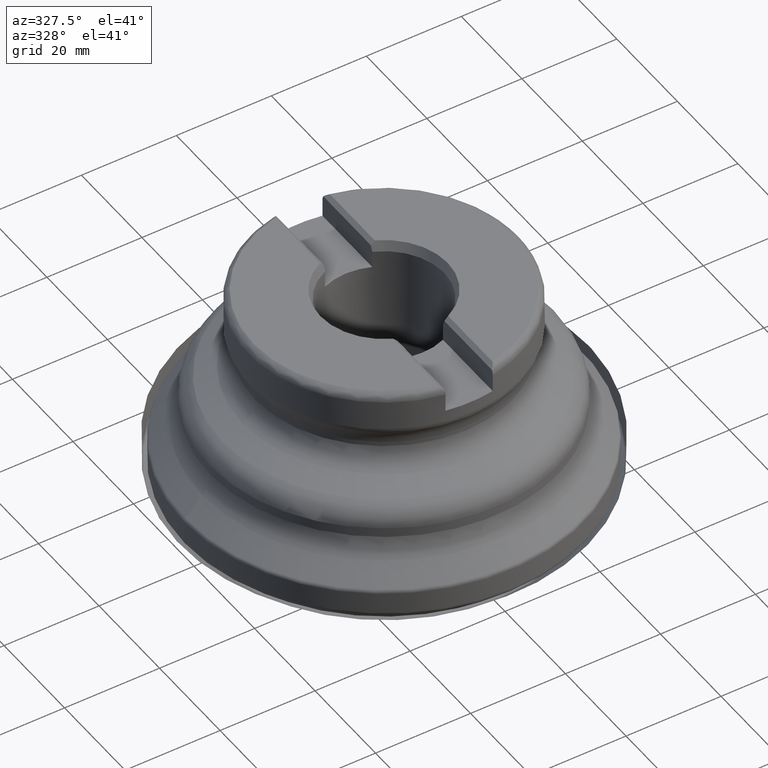
[diagram: clean part render]
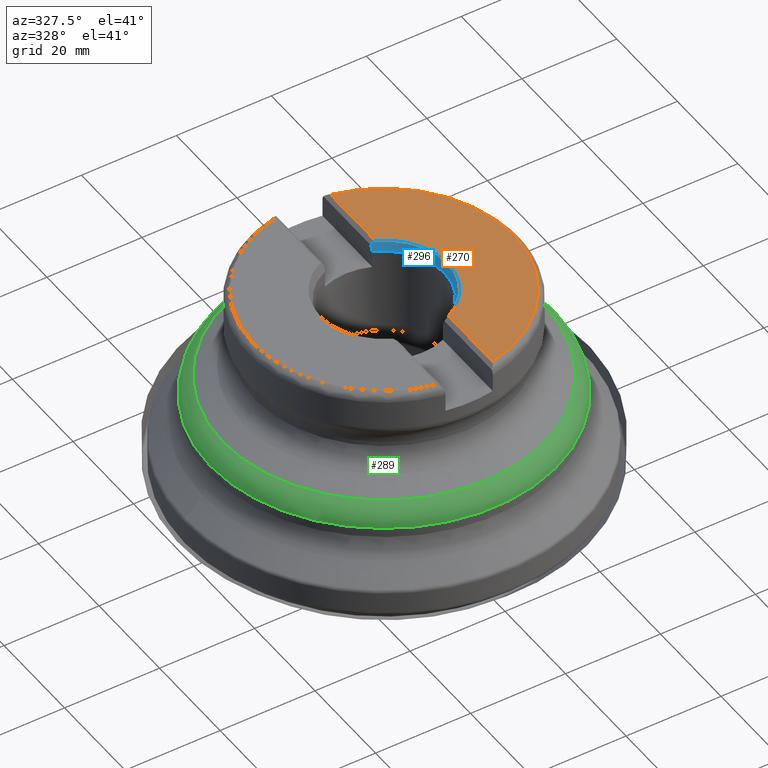
[diagram: same view with three faces highlighted in distinct colors, each labeled with its STEP entity id]
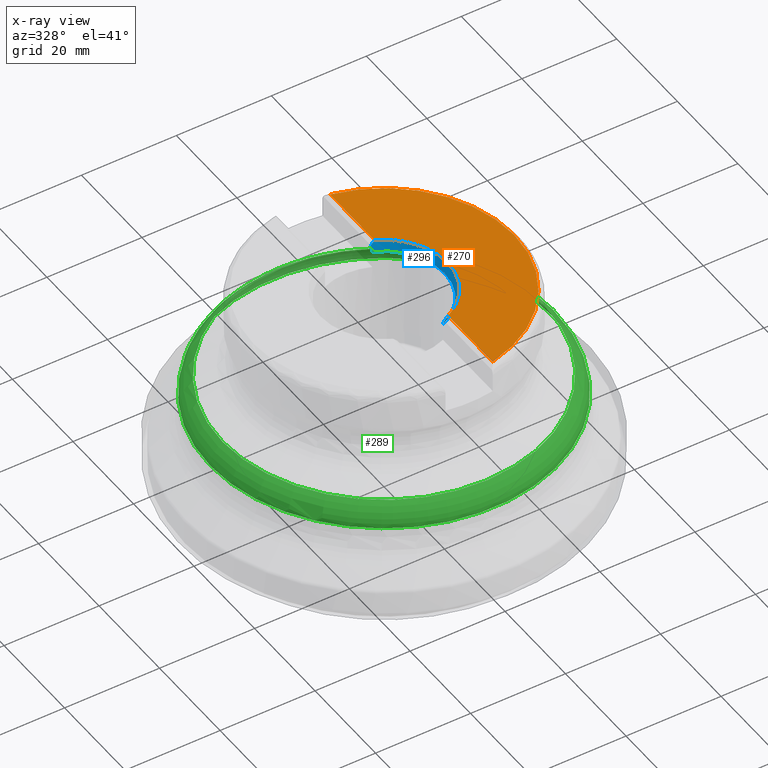
[diagram: x-ray of the same camera — body ghosted, the three highlighted faces saturated]
A machine part, auxiliary view with three faces highlighted in distinct colors.
The next image is the same camera in x-ray (body ghosted, the three faces saturated) — at least one of them is partly hidden behind the body in this view.
Their STEP definitions:

[orange] entity #270 — the highlighted planar face has unit normal (-0, -0, -1).
#168=PLANE('',#1055);
#186=FACE_OUTER_BOUND('',#454,.T.);
#216=LINE('',#1618,#244);
#217=LINE('',#1619,#245);
#244=VECTOR('',#1193,1.);
#245=VECTOR('',#1194,1.);
#270=ADVANCED_FACE('',(#186),#168,.F.);
#454=EDGE_LOOP('',(#594,#595,#596,#597));
#594=ORIENTED_EDGE('',*,*,#867,.T.);
#595=ORIENTED_EDGE('',*,*,#868,.T.);
#596=ORIENTED_EDGE('',*,*,#857,.T.);
#597=ORIENTED_EDGE('',*,*,#869,.T.);
#776=VERTEX_POINT('',#1545);
#777=VERTEX_POINT('',#1546);
#784=VERTEX_POINT('',#1616);
#785=VERTEX_POINT('',#1617);
#857=EDGE_CURVE('',#776,#777,#946,.T.);
#867=EDGE_CURVE('',#784,#785,#948,.T.);
#868=EDGE_CURVE('',#785,#776,#216,.T.);
#869=EDGE_CURVE('',#777,#784,#217,.T.);
#946=CIRCLE('',#1050,27.4467797887081);
#948=CIRCLE('',#1054,13.4279404685324);
#1050=AXIS2_PLACEMENT_3D('',#1544,#1183,#1184);
#1054=AXIS2_PLACEMENT_3D('',#1615,#1191,#1192);
#1055=AXIS2_PLACEMENT_3D('',#1620,#1195,#1196);
#1183=DIRECTION('',(1.17145536458253E-15,1.33226762955019E-15,1.));
#1184=DIRECTION('',(1.,-3.1641356201817E-15,-1.26406339055519E-15));
#1191=DIRECTION('',(-1.17145536458253E-15,-1.33226762955019E-15,-1.));
#1192=DIRECTION('',(1.,-3.1641356201817E-15,-1.03350084403012E-15));
#1193=DIRECTION('',(-3.16413562018169E-15,-1.,1.33226762955019E-15));
#1194=DIRECTION('',(-3.16413562018169E-15,-1.,1.33226762955019E-15));
#1195=DIRECTION('',(-1.17145536458253E-15,-1.33226762955019E-15,-1.));
#1196=DIRECTION('',(1.,-3.1641356201817E-15,-1.17267306976032E-15));
#1544=CARTESIAN_POINT('',(5.20711909556934E-14,5.92192961335059E-14,44.45));
#1545=CARTESIAN_POINT('',(5.76499999999996,-26.8345019661226,44.45));
#1546=CARTESIAN_POINT('',(5.76500000000013,26.8345019661226,44.45));
#1615=CARTESIAN_POINT('',(5.20711909556934E-14,5.92192961335059E-14,44.45));
#1616=CARTESIAN_POINT('',(5.76500000000008,12.1274218293276,44.45));
#1617=CARTESIAN_POINT('',(5.76500000000001,-12.1274218293275,44.45));
#1618=CARTESIAN_POINT('',(5.76499999999996,-26.9939714708643,44.45));
#1619=CARTESIAN_POINT('',(5.76500000000008,12.4763119641363,44.45));
#1620=CARTESIAN_POINT('',(5.20711909556934E-14,5.92192961335059E-14,44.45));

[blue] entity #296 — the highlighted conical surface has half-angle 20 deg.
#110=ELLIPSE('',#1098,18.469249028632,12.1639718412658);
#111=ELLIPSE('',#1099,18.469249028632,12.1639718412658);
#116=CONICAL_SURFACE('',#1100,12.7,20.);
#194=FACE_OUTER_BOUND('',#498,.T.);
#296=ADVANCED_FACE('',(#194),#116,.F.);
#498=EDGE_LOOP('',(#670,#671,#672,#673,#674,#675));
#670=ORIENTED_EDGE('',*,*,#900,.F.);
#671=ORIENTED_EDGE('',*,*,#911,.T.);
#672=ORIENTED_EDGE('',*,*,#867,.F.);
#673=ORIENTED_EDGE('',*,*,#912,.T.);
#674=ORIENTED_EDGE('',*,*,#907,.F.);
#675=ORIENTED_EDGE('',*,*,#850,.F.);
#768=VERTEX_POINT('',#1528);
#770=VERTEX_POINT('',#1531);
#784=VERTEX_POINT('',#1616);
#785=VERTEX_POINT('',#1617);
#814=VERTEX_POINT('',#1810);
#816=VERTEX_POINT('',#1833);
#850=EDGE_CURVE('',#768,#770,#942,.T.);
#867=EDGE_CURVE('',#784,#785,#948,.T.);
#900=EDGE_CURVE('',#814,#768,#1019,.T.);
#907=EDGE_CURVE('',#770,#816,#1021,.T.);
#911=EDGE_CURVE('',#814,#785,#110,.T.);
#912=EDGE_CURVE('',#784,#816,#111,.T.);
#942=CIRCLE('',#1045,12.7);
#948=CIRCLE('',#1054,13.4279404685324);
#1019=B_SPLINE_CURVE_WITH_KNOTS('',3,(#1811,#1812,#1813,#1814),
 .UNSPECIFIED.,.F.,.F.,(4,4),(0.,1.),.UNSPECIFIED.);
#1021=B_SPLINE_CURVE_WITH_KNOTS('',3,(#1829,#1830,#1831,#1832),
 .UNSPECIFIED.,.F.,.F.,(4,4),(0.,1.),.UNSPECIFIED.);
#1045=AXIS2_PLACEMENT_3D('',#1530,#1170,#1171);
#1054=AXIS2_PLACEMENT_3D('',#1615,#1191,#1192);
#1098=AXIS2_PLACEMENT_3D('',#1843,#1297,#1298);
#1099=AXIS2_PLACEMENT_3D('',#1844,#1299,#1300);
#1100=AXIS2_PLACEMENT_3D('',#1845,#1301,#1302);
#1170=DIRECTION('',(1.17145536458253E-15,1.33226762955019E-15,1.));
#1171=DIRECTION('',(1.,-3.1641356201817E-15,-1.09273919746571E-15));
#1191=DIRECTION('',(-1.17145536458253E-15,-1.33226762955019E-15,-1.));
#1192=DIRECTION('',(1.,-3.1641356201817E-15,-1.03350084403012E-15));
#1297=DIRECTION('',(-0.707106781186548,3.17943722883465E-15,0.707106781186547));
#1298=DIRECTION('',(0.707106781186547,-1.29532627841411E-15,0.707106781186548));
#1299=DIRECTION('',(-0.707106781186548,3.17943722883465E-15,0.707106781186547));
#1300=DIRECTION('',(0.707106781186547,-1.29532627841411E-15,0.707106781186548));
#1301=DIRECTION('',(1.17145536458253E-15,1.33226762955019E-15,1.));
#1302=DIRECTION('',(-1.,3.1641356201817E-15,1.43689008386647E-15));
#1528=CARTESIAN_POINT('',(4.96500000000001,-11.6892589585482,42.45));
#1530=CARTESIAN_POINT('',(4.97282802265283E-14,5.65547608744055E-14,42.45));
#1531=CARTESIAN_POINT('',(4.96500000000008,11.6892589585483,42.45));
#1615=CARTESIAN_POINT('',(5.20711909556934E-14,5.92192961335059E-14,44.45));
#1616=CARTESIAN_POINT('',(5.76500000000008,12.1274218293276,44.45));
#1617=CARTESIAN_POINT('',(5.76500000000001,-12.1274218293275,44.45));
#1810=CARTESIAN_POINT('',(4.96500000000001,-12.1623743889791,43.65));
#1811=CARTESIAN_POINT('',(4.96500000000001,-12.1623743889791,43.65));
#1812=CARTESIAN_POINT('',(4.96500000000001,-12.0050617418596,43.249845475678));
#1813=CARTESIAN_POINT('',(4.96500000000001,-11.8473720014207,42.8498389400155));
#1814=CARTESIAN_POINT('',(4.96500000000001,-11.6892589585482,42.45));
#1829=CARTESIAN_POINT('',(4.96500000000008,11.6892589585483,42.45));
#1830=CARTESIAN_POINT('',(4.96500000000008,11.8473720014208,42.8498389400154));
#1831=CARTESIAN_POINT('',(4.96500000000008,12.0050617418597,43.249845475678));
#1832=CARTESIAN_POINT('',(4.96500000000008,12.1623743889792,43.65));
#1833=CARTESIAN_POINT('',(4.96500000000008,12.1623743889792,43.65));
#1843=CARTESIAN_POINT('',(4.75335343580778,4.28312572419345E-14,43.4383534358077));
#1844=CARTESIAN_POINT('',(4.75335343580778,4.28312572419345E-14,43.4383534358077));
#1845=CARTESIAN_POINT('',(4.97282802265283E-14,5.65547608744055E-14,42.45));

[green] entity #289 — the highlighted toroidal blend (fillet) surface has major radius 31.6 mm and minor (blend) radius 5 mm.
#289=ADVANCED_FACE('',(#386,#387),#334,.T.);
#334=TOROIDAL_SURFACE('',#1091,31.6,5.);
#386=FACE_BOUND('',#490,.T.);
#387=FACE_BOUND('',#491,.T.);
#490=EDGE_LOOP('',(#636));
#491=EDGE_LOOP('',(#637));
#636=ORIENTED_EDGE('',*,*,#894,.F.);
#637=ORIENTED_EDGE('',*,*,#896,.F.);
#809=VERTEX_POINT('',#1796);
#811=VERTEX_POINT('',#1801);
#894=EDGE_CURVE('',#809,#809,#967,.T.);
#896=EDGE_CURVE('',#811,#811,#969,.T.);
#967=CIRCLE('',#1083,36.6);
#969=CIRCLE('',#1086,33.9705401857403);
#1083=AXIS2_PLACEMENT_3D('',#1795,#1259,#1260);
#1086=AXIS2_PLACEMENT_3D('',#1800,#1265,#1266);
#1091=AXIS2_PLACEMENT_3D('',#1808,#1275,#1276);
#1259=DIRECTION('',(-1.17145536458253E-15,-1.33226762955019E-15,-1.));
#1260=DIRECTION('',(1.,-3.1641356201817E-15,-1.13752359080446E-15));
#1265=DIRECTION('',(1.17145536458253E-15,1.33226762955019E-15,1.));
#1266=DIRECTION('',(-1.,3.1641356201817E-15,1.12344155444163E-15));
#1275=DIRECTION('',(-1.17145536458253E-15,-1.33226762955019E-15,-1.));
#1276=DIRECTION('',(1.,-3.1641356201817E-15,-1.13752359080446E-15));
#1795=CARTESIAN_POINT('',(2.3490176146619E-14,2.67148047110828E-14,20.052130757018));
#1796=CARTESIAN_POINT('',(36.6,-8.90925589875673E-14,20.0521307570179));
#1800=CARTESIAN_POINT('',(2.86473132065068E-14,3.25798909736657E-14,24.454464141462));
#1801=CARTESIAN_POINT('',(-33.9705401857402,1.4006728721218E-13,24.4544641414621));
#1808=CARTESIAN_POINT('',(2.3490176146619E-14,2.67148047110828E-14,20.052130757018));